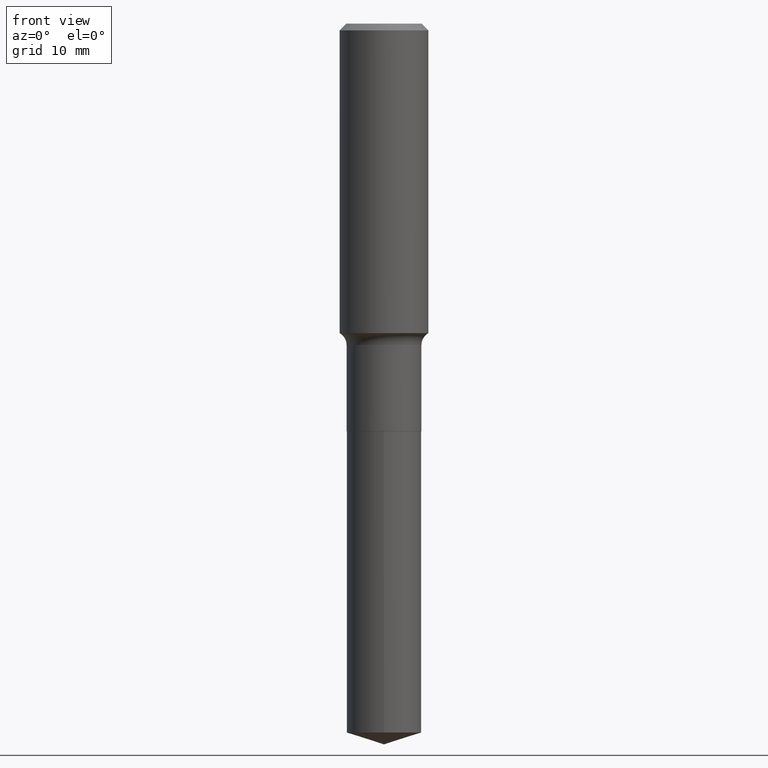
[diagram: clean part render]
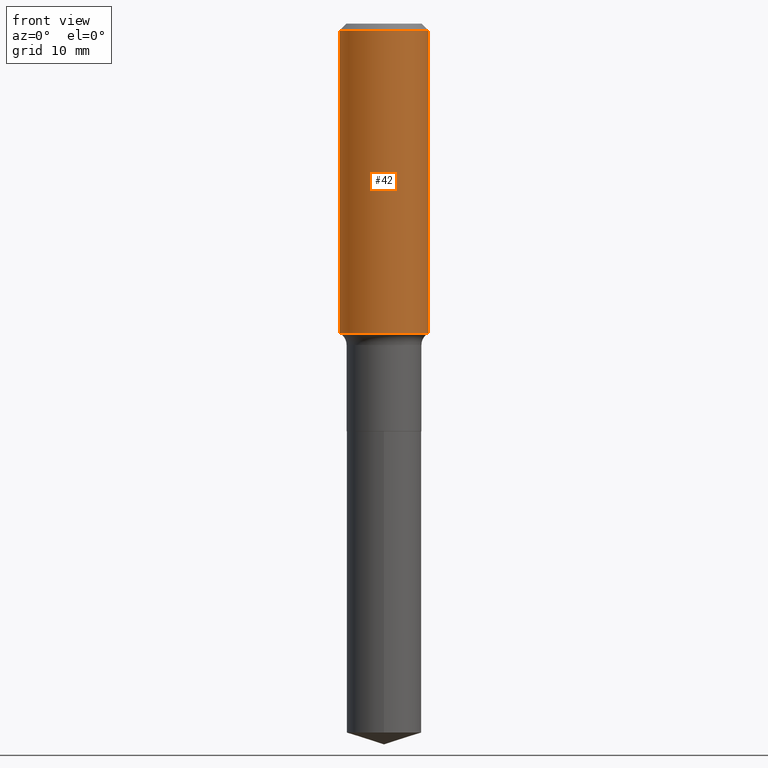
[diagram: same view with one face highlighted and labeled with its STEP entity id]
A machine part, front view. The second image highlights one B-rep face of the part: STEP entity #42.
In plain terms, the highlighted cylindrical surface (partial cylindrical patch) has radius 6.35 mm, axis along (-0, 0, 1).
Its self-contained STEP definition (entity closure, byte-faithful):
#2 = EDGE_CURVE ( 'NONE', #189, #69, #329, .T. ) ;
#38 = ORIENTED_EDGE ( 'NONE', *, *, #112, .F. ) ;
#42 = ADVANCED_FACE ( 'NONE', ( #79 ), #230, .T. ) ;
#55 = CARTESIAN_POINT ( 'NONE',  ( 0.2500000000000002776, -7.835307206898355529E-15, -1.744121175653907674 ) ) ;
#65 = CARTESIAN_POINT ( 'NONE',  ( 4.265193929268578422E-29, -6.089566537476786485E-15, -1.744121175653907674 ) ) ;
#69 = VERTEX_POINT ( 'NONE', #471 ) ;
#79 = FACE_OUTER_BOUND ( 'NONE', #379, .T. ) ;
#81 = AXIS2_PLACEMENT_3D ( 'NONE', #198, #84, #132 ) ;
#84 = DIRECTION ( 'NONE',  ( -2.445468806185136597E-29, 3.491481338843145583E-15, 1.000000000000000000 ) ) ;
#100 = EDGE_CURVE ( 'NONE', #219, #69, #489, .T. ) ;
#112 = EDGE_CURVE ( 'NONE', #265, #219, #166, .T. ) ;
#132 = DIRECTION ( 'NONE',  ( 1.000000000000000000, -6.982962677686266711E-15, 4.876176775795935793E-29 ) ) ;
#140 = ORIENTED_EDGE ( 'NONE', *, *, #2, .T. ) ;
#150 = ORIENTED_EDGE ( 'NONE', *, *, #100, .F. ) ;
#156 = CARTESIAN_POINT ( 'NONE',  ( -0.2500000000000000000, -1.333891704441451331E-15, -0.03750000000000025535 ) ) ;
#165 = DIRECTION ( 'NONE',  ( -2.445468806185136597E-29, 3.491481338843145583E-15, 1.000000000000000000 ) ) ;
#166 = LINE ( 'NONE', #338, #465 ) ;
#185 = VECTOR ( 'NONE', #190, 39.37007874015748143 ) ;
#189 = VERTEX_POINT ( 'NONE', #55 ) ;
#190 = DIRECTION ( 'NONE',  ( -2.445468806185136877E-29, 3.491481338843145188E-15, 1.000000000000000000 ) ) ;
#198 = CARTESIAN_POINT ( 'NONE',  ( 0.000000000000000000, 0.000000000000000000, 0.000000000000000000 ) ) ;
#209 = CARTESIAN_POINT ( 'NONE',  ( -0.2500000000000002776, -4.313209698076534443E-15, -1.744121175653907674 ) ) ;
#212 = DIRECTION ( 'NONE',  ( 1.000000000000000000, -6.982962677686268288E-15, 0.000000000000000000 ) ) ;
#219 = VERTEX_POINT ( 'NONE', #156 ) ;
#230 = CYLINDRICAL_SURFACE ( 'NONE', #81, 0.2500000000000001110 ) ;
#243 = DIRECTION ( 'NONE',  ( -2.445468806185136597E-29, 3.491481338843145583E-15, 1.000000000000000000 ) ) ;
#265 = VERTEX_POINT ( 'NONE', #209 ) ;
#268 = ORIENTED_EDGE ( 'NONE', *, *, #355, .T. ) ;
#276 = CARTESIAN_POINT ( 'NONE',  ( 9.170508023194324245E-31, -1.309305502066188567E-16, -0.03750000000000025535 ) ) ;
#303 = DIRECTION ( 'NONE',  ( 1.000000000000000000, -6.982962677686266711E-15, 0.000000000000000000 ) ) ;
#329 = LINE ( 'NONE', #491, #185 ) ;
#338 = CARTESIAN_POINT ( 'NONE',  ( -0.2500000000000001110, 1.776356839400251254E-15, -1.229733772563727006E-29 ) ) ;
#355 = EDGE_CURVE ( 'NONE', #265, #189, #441, .T. ) ;
#379 = EDGE_LOOP ( 'NONE', ( #38, #268, #140, #150 ) ) ;
#383 = DIRECTION ( 'NONE',  ( -2.445468806185136877E-29, 3.491481338843145188E-15, 1.000000000000000000 ) ) ;
#388 = AXIS2_PLACEMENT_3D ( 'NONE', #65, #243, #212 ) ;
#431 = AXIS2_PLACEMENT_3D ( 'NONE', #276, #165, #303 ) ;
#441 = CIRCLE ( 'NONE', #388, 0.2500000000000002220 ) ;
#465 = VECTOR ( 'NONE', #383, 39.37007874015748143 ) ;
#471 = CARTESIAN_POINT ( 'NONE',  ( 0.2500000000000000000, -1.876671219628185362E-15, -0.03750000000000025535 ) ) ;
#489 = CIRCLE ( 'NONE', #431, 0.2500000000000000000 ) ;
#491 = CARTESIAN_POINT ( 'NONE',  ( 0.2500000000000001110, -1.745740669421567467E-15, 1.219044193948984509E-29 ) ) ;